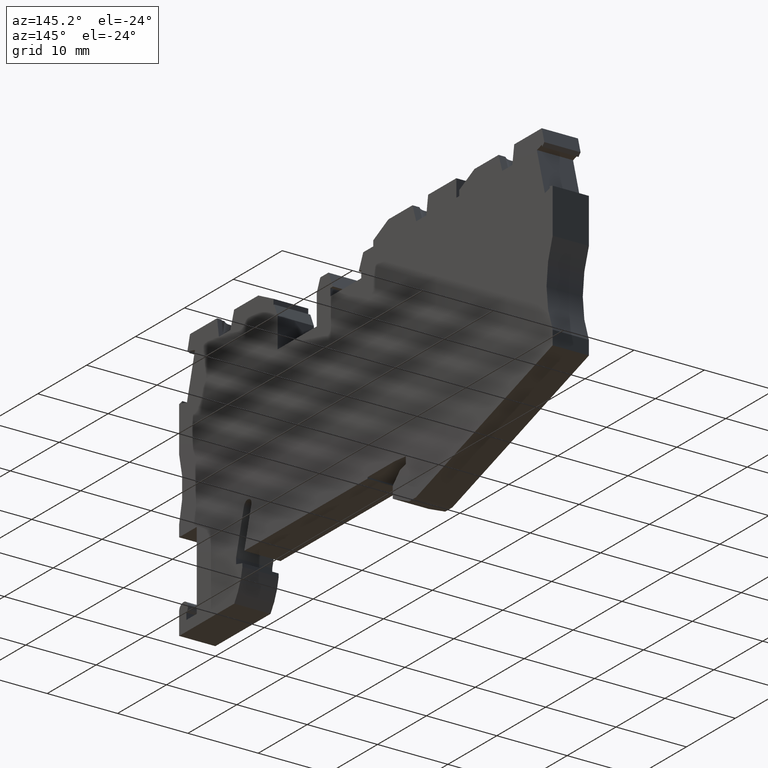
[diagram: clean part render]
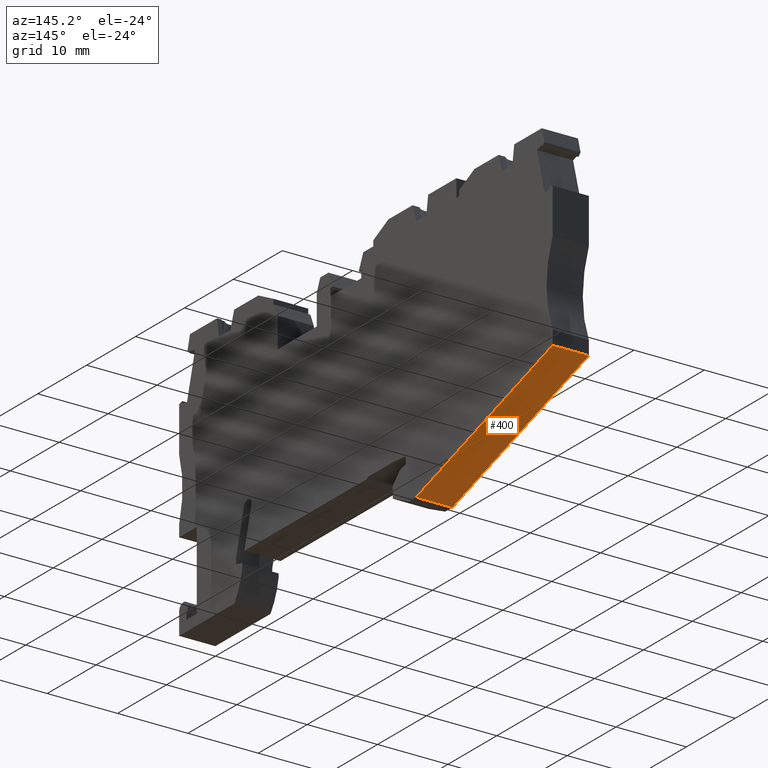
[diagram: same view with one face highlighted and labeled with its STEP entity id]
A machine part, auxiliary view. The second image highlights one B-rep face of the part: STEP entity #400.
In plain terms, the highlighted planar face has unit normal (-0, 0.3128, -0.9498).
Its self-contained STEP definition (entity closure, byte-faithful):
#10=CARTESIAN_POINT('',(56.1478699221871,0.781073848762777,
-4.61852778244065E-14));
#20=DIRECTION('',(0.426259263114737,-0.904601039469269,0.));
#30=DIRECTION('',(-0.904601039469269,-0.426259263114737,0.));
#40=AXIS2_PLACEMENT_3D('',#10,#20,#30);
#50=PLANE('',#40);
#60=CARTESIAN_POINT('',(55.8575904551391,0.644290552787567,0.));
#70=DIRECTION('',(0.,0.,-1.));
#80=VECTOR('',#70,1.);
#90=LINE('',#60,#80);
#100=CARTESIAN_POINT('',(55.8575904551391,0.64429055278757,
6.47753305600609E-11));
#110=VERTEX_POINT('',#100);
#120=CARTESIAN_POINT('',(55.8575904551391,0.64429055278757,
-5.15000000007418));
#130=VERTEX_POINT('',#120);
#140=EDGE_CURVE('',#110,#130,#90,.T.);
#150=ORIENTED_EDGE('',*,*,#140,.T.);
#160=CARTESIAN_POINT('',(0.,-25.6765009430321,9.61355416103246E-11));
#170=DIRECTION('',(0.904601039469269,0.426259263114737,
-5.07871522614778E-13));
#180=VECTOR('',#170,1.);
#190=LINE('',#160,#180);
#200=CARTESIAN_POINT('',(82.4574372953317,13.1784692883301,
4.98413385275352E-11));
#210=VERTEX_POINT('',#200);
#220=EDGE_CURVE('',#110,#210,#190,.T.);
#230=ORIENTED_EDGE('',*,*,#220,.F.);
#240=CARTESIAN_POINT('',(82.4574372953317,13.1784692883301,0.));
#250=DIRECTION('',(0.,0.,1.));
#260=VECTOR('',#250,1.);
#270=LINE('',#240,#260);
#280=CARTESIAN_POINT('',(82.4574372953317,13.1784692883301,
-5.15000000006554));
#290=VERTEX_POINT('',#280);
#300=EDGE_CURVE('',#290,#210,#270,.T.);
#310=ORIENTED_EDGE('',*,*,#300,.T.);
#320=CARTESIAN_POINT('',(0.,-25.6765009430321,-5.15000000009233));
#330=DIRECTION('',(0.904601039469269,0.426259263114737,
2.93820523467048E-13));
#340=VECTOR('',#330,1.);
#350=LINE('',#320,#340);
#360=EDGE_CURVE('',#130,#290,#350,.T.);
#370=ORIENTED_EDGE('',*,*,#360,.T.);
#380=EDGE_LOOP('',(#370,#310,#230,#150));
#390=FACE_OUTER_BOUND('',#380,.T.);
#400=ADVANCED_FACE('',(#390),#50,.T.);